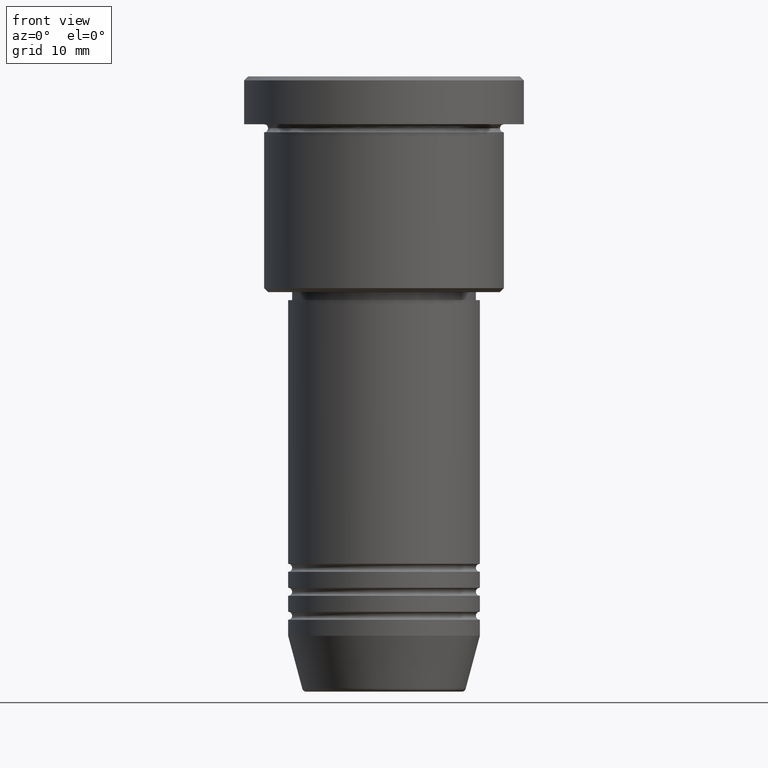
[diagram: clean part render]
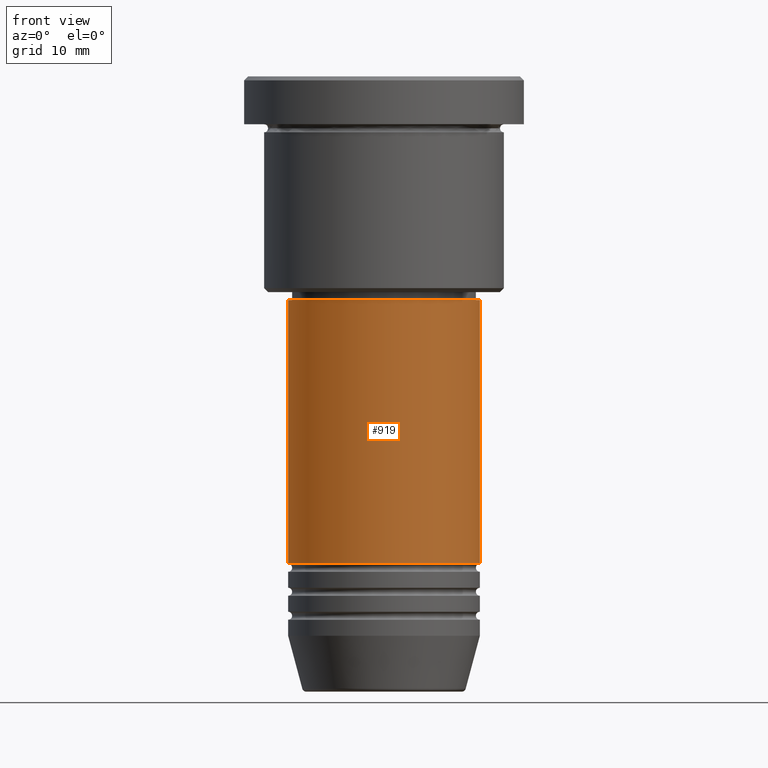
[diagram: same view with one face highlighted and labeled with its STEP entity id]
A machine part, front view. The second image highlights one B-rep face of the part: STEP entity #919.
In plain terms, the highlighted cylindrical surface (partial cylindrical patch) has radius 12 mm, axis along (-0, -0, 1).
Its self-contained STEP definition (entity closure, byte-faithful):
#12 = VERTEX_POINT ( 'NONE', #352 ) ;
#13 = AXIS2_PLACEMENT_3D ( 'NONE', #936, #782, #857 ) ;
#20 = DIRECTION ( 'NONE',  ( -0.000000000000000000, -0.000000000000000000, 1.000000000000000000 ) ) ;
#55 = ORIENTED_EDGE ( 'NONE', *, *, #261, .T. ) ;
#116 = CARTESIAN_POINT ( 'NONE',  ( -12.00000000000000000, 1.469576158976823947E-15, -60.99999999999998579 ) ) ;
#130 = VERTEX_POINT ( 'NONE', #116 ) ;
#148 = CARTESIAN_POINT ( 'NONE',  ( -12.00000000000000000, 1.469576158976823947E-15, 0.000000000000000000 ) ) ;
#154 = DIRECTION ( 'NONE',  ( 1.000000000000000000, 0.000000000000000000, 0.000000000000000000 ) ) ;
#216 = CYLINDRICAL_SURFACE ( 'NONE', #1154, 12.00000000000000000 ) ;
#227 = LINE ( 'NONE', #1112, #762 ) ;
#251 = ORIENTED_EDGE ( 'NONE', *, *, #1121, .F. ) ;
#261 = EDGE_CURVE ( 'NONE', #130, #841, #855, .T. ) ;
#352 = CARTESIAN_POINT ( 'NONE',  ( 12.00000000000000000, 0.000000000000000000, -28.00000000000000711 ) ) ;
#426 = CARTESIAN_POINT ( 'NONE',  ( 0.000000000000000000, 0.000000000000000000, -28.00000000000000711 ) ) ;
#448 = CARTESIAN_POINT ( 'NONE',  ( 12.00000000000000000, 0.000000000000000000, -60.99999999999998579 ) ) ;
#469 = VERTEX_POINT ( 'NONE', #592 ) ;
#512 = DIRECTION ( 'NONE',  ( -0.000000000000000000, -0.000000000000000000, 1.000000000000000000 ) ) ;
#571 = DIRECTION ( 'NONE',  ( -0.000000000000000000, -0.000000000000000000, 1.000000000000000000 ) ) ;
#580 = EDGE_CURVE ( 'NONE', #841, #12, #227, .T. ) ;
#592 = CARTESIAN_POINT ( 'NONE',  ( -12.00000000000000000, 1.469576158976823947E-15, -28.00000000000000711 ) ) ;
#617 = DIRECTION ( 'NONE',  ( -0.000000000000000000, -0.000000000000000000, 1.000000000000000000 ) ) ;
#674 = DIRECTION ( 'NONE',  ( 1.000000000000000000, 0.000000000000000000, 0.000000000000000000 ) ) ;
#708 = ORIENTED_EDGE ( 'NONE', *, *, #580, .T. ) ;
#739 = EDGE_LOOP ( 'NONE', ( #251, #55, #708, #871 ) ) ;
#745 = AXIS2_PLACEMENT_3D ( 'NONE', #426, #512, #154 ) ;
#762 = VECTOR ( 'NONE', #571, 1000.000000000000000 ) ;
#782 = DIRECTION ( 'NONE',  ( -0.000000000000000000, -0.000000000000000000, 1.000000000000000000 ) ) ;
#841 = VERTEX_POINT ( 'NONE', #448 ) ;
#855 = CIRCLE ( 'NONE', #13, 12.00000000000000000 ) ;
#857 = DIRECTION ( 'NONE',  ( 1.000000000000000000, 0.000000000000000000, 0.000000000000000000 ) ) ;
#871 = ORIENTED_EDGE ( 'NONE', *, *, #1066, .F. ) ;
#919 = ADVANCED_FACE ( 'NONE', ( #1013 ), #216, .T. ) ;
#936 = CARTESIAN_POINT ( 'NONE',  ( 0.000000000000000000, 0.000000000000000000, -60.99999999999998579 ) ) ;
#1005 = CIRCLE ( 'NONE', #745, 12.00000000000000000 ) ;
#1013 = FACE_OUTER_BOUND ( 'NONE', #739, .T. ) ;
#1017 = CARTESIAN_POINT ( 'NONE',  ( 0.000000000000000000, 0.000000000000000000, 0.000000000000000000 ) ) ;
#1049 = LINE ( 'NONE', #148, #1078 ) ;
#1066 = EDGE_CURVE ( 'NONE', #469, #12, #1005, .T. ) ;
#1078 = VECTOR ( 'NONE', #617, 1000.000000000000000 ) ;
#1112 = CARTESIAN_POINT ( 'NONE',  ( 12.00000000000000000, 0.000000000000000000, 0.000000000000000000 ) ) ;
#1121 = EDGE_CURVE ( 'NONE', #130, #469, #1049, .T. ) ;
#1154 = AXIS2_PLACEMENT_3D ( 'NONE', #1017, #20, #674 ) ;